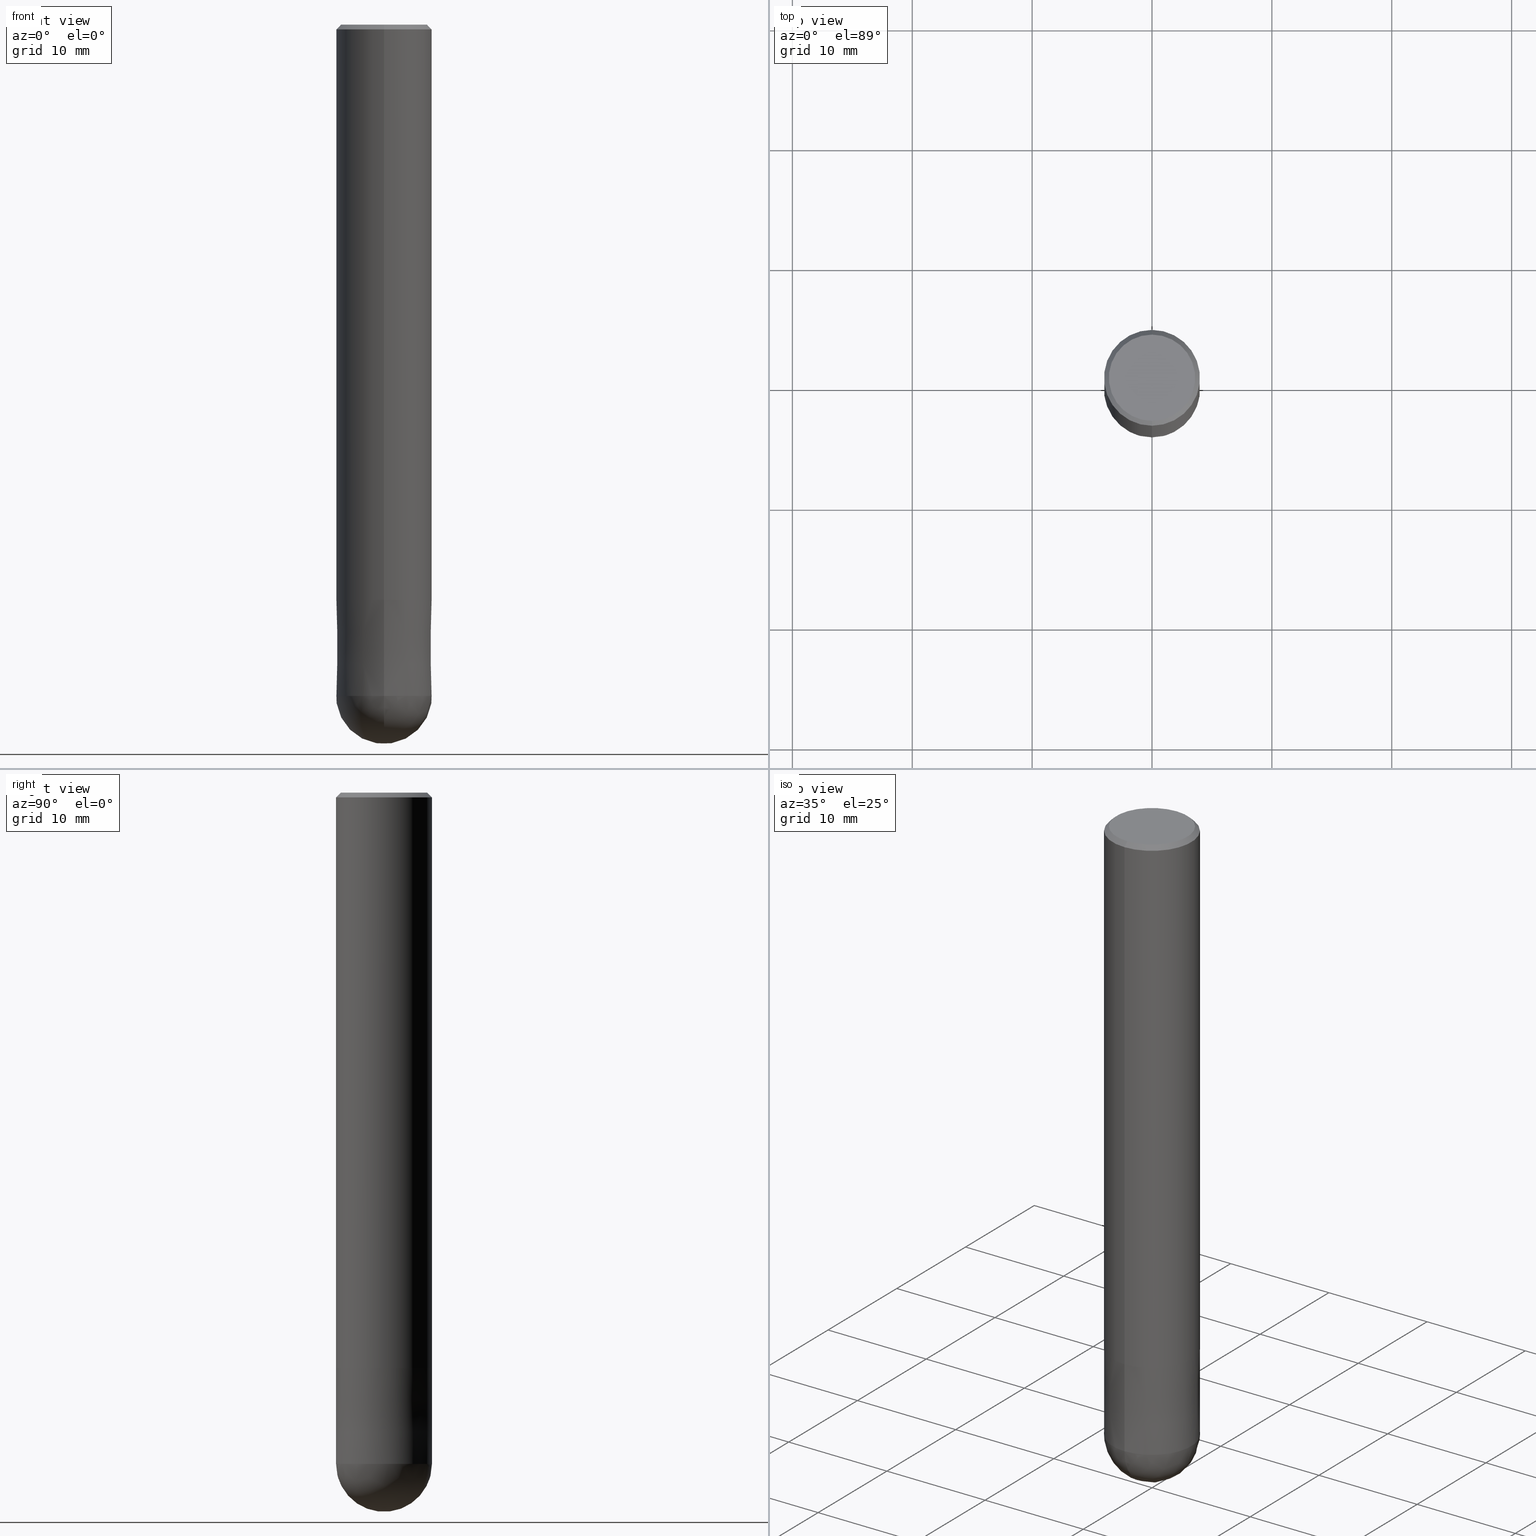
[diagram: canonical four-view strip — front | top / right | iso, engineering-drawing reading convention]
A machine part, canonical four-view strip (front | top / right | iso — engineering-drawing reading convention). The complete STEP part file that produces these views, byte-faithful:
ISO-10303-21;
HEADER;
FILE_DESCRIPTION(('no description'),'unknown implementation level');
FILE_NAME('HFB4080-1200S-Huellk.stp','  ',('CIMSOURCE GmbH'),('CADClick - KiM GmbH - www.kimweb.de'),'unknown preprocess','ACIS','unknown authorization');
FILE_SCHEMA(('automotive_design'));
ENDSEC;
DATA;
#1=MECHANICAL_DESIGN_GEOMETRIC_PRESENTATION_REPRESENTATION(' ',(#10,#11,#12,#13,#14,#15,#16,#17,#18,#19,#20,#21,#22,#23,#24,#25,#26,#27,#28,#29,#30,#31,#32,#33,#34,#35,#36,#37,#38,#39,#40,#41,#42,#43,#44,#45,#46,#47),#6);
#2=PRODUCT_DEFINITION_CONTEXT('',#48,'design');
#3=APPLICATION_PROTOCOL_DEFINITION('INTERNATIONAL STANDARD','automotive_design',1994,#48);
#4=PRODUCT_CATEGORY_RELATIONSHIP('NONE','NONE',#49,#50);
#5=SHAPE_DEFINITION_REPRESENTATION(#51,#52);
#6= (GEOMETRIC_REPRESENTATION_CONTEXT(3)GLOBAL_UNCERTAINTY_ASSIGNED_CONTEXT((#55))GLOBAL_UNIT_ASSIGNED_CONTEXT((#57,#58,#59))REPRESENTATION_CONTEXT('NONE','WORKSPACE'));
#10=STYLED_ITEM('',(#61),#62);
#11=STYLED_ITEM('',(#63),#64);
#12=STYLED_ITEM('',(#65),#66);
#13=STYLED_ITEM('',(#67),#68);
#14=STYLED_ITEM('',(#69),#70);
#15=STYLED_ITEM('',(#71),#72);
#16=STYLED_ITEM('',(#73),#74);
#17=STYLED_ITEM('',(#75),#76);
#18=STYLED_ITEM('',(#77),#78);
#19=STYLED_ITEM('',(#79),#80);
#20=STYLED_ITEM('',(#81),#82);
#21=STYLED_ITEM('',(#83),#84);
#22=STYLED_ITEM('',(#85),#86);
#23=STYLED_ITEM('',(#87),#88);
#24=STYLED_ITEM('',(#89),#90);
#25=STYLED_ITEM('',(#91),#92);
#26=STYLED_ITEM('',(#93),#94);
#27=STYLED_ITEM('',(#95),#96);
#28=STYLED_ITEM('',(#97),#98);
#29=STYLED_ITEM('',(#99),#100);
#30=STYLED_ITEM('',(#101),#102);
#31=STYLED_ITEM('',(#103),#104);
#32=STYLED_ITEM('',(#105),#106);
#33=STYLED_ITEM('',(#107),#108);
#34=STYLED_ITEM('',(#109),#110);
#35=STYLED_ITEM('',(#111),#112);
#36=STYLED_ITEM('',(#113),#114);
#37=STYLED_ITEM('',(#115),#116);
#38=STYLED_ITEM('',(#117),#118);
#39=STYLED_ITEM('',(#119),#120);
#40=STYLED_ITEM('',(#121),#122);
#41=STYLED_ITEM('',(#123),#124);
#42=STYLED_ITEM('',(#125),#126);
#43=STYLED_ITEM('',(#127),#128);
#44=STYLED_ITEM('',(#129),#130);
#45=STYLED_ITEM('',(#131),#132);
#46=STYLED_ITEM('',(#133),#134);
#47=STYLED_ITEM('',(#135),#136);
#48=APPLICATION_CONTEXT(' ');
#49=PRODUCT_CATEGORY('part','NONE');
#50=PRODUCT_RELATED_PRODUCT_CATEGORY('detail',' ',(#137));
#51=PRODUCT_DEFINITION_SHAPE('NONE','NONE',#138);
#52=ADVANCED_BREP_SHAPE_REPRESENTATION('1',(#70,#139),#6);
#55=UNCERTAINTY_MEASURE_WITH_UNIT(LENGTH_MEASURE(1.0E-006),#57,'','');
#57= (CONVERSION_BASED_UNIT('MILLIMETRE',#142)LENGTH_UNIT()NAMED_UNIT(#145));
#58= (NAMED_UNIT(#147)PLANE_ANGLE_UNIT()SI_UNIT($,.RADIAN.));
#59= (NAMED_UNIT(#147)SOLID_ANGLE_UNIT()SI_UNIT($,.STERADIAN.));
#61=PRESENTATION_STYLE_ASSIGNMENT((#153));
#62=ADVANCED_FACE('',(#154),#155,.T.);
#63=PRESENTATION_STYLE_ASSIGNMENT((#156));
#64=EDGE_CURVE('',#90,#136,#157,.T.);
#65=PRESENTATION_STYLE_ASSIGNMENT((#158));
#66=EDGE_CURVE('',#88,#96,#159,.T.);
#67=PRESENTATION_STYLE_ASSIGNMENT((#160));
#68=ADVANCED_FACE('',(#161),#162,.T.);
#69=PRESENTATION_STYLE_ASSIGNMENT((#163));
#70=MANIFOLD_SOLID_BREP('1',#164);
#71=PRESENTATION_STYLE_ASSIGNMENT((#165));
#72=EDGE_CURVE('',#108,#88,#166,.T.);
#73=PRESENTATION_STYLE_ASSIGNMENT((#167));
#74=EDGE_CURVE('',#98,#86,#168,.T.);
#75=PRESENTATION_STYLE_ASSIGNMENT((#169));
#76=ADVANCED_FACE('',(#170),#171,.T.);
#77=PRESENTATION_STYLE_ASSIGNMENT((#172));
#78=EDGE_CURVE('',#108,#98,#173,.T.);
#79=PRESENTATION_STYLE_ASSIGNMENT((#174));
#80=ADVANCED_FACE('',(#175),#176,.T.);
#81=PRESENTATION_STYLE_ASSIGNMENT((#177));
#82=VERTEX_POINT('',#178);
#83=PRESENTATION_STYLE_ASSIGNMENT((#179));
#84=ADVANCED_FACE('',(#180,#181),#182,.T.);
#85=PRESENTATION_STYLE_ASSIGNMENT((#183));
#86=VERTEX_POINT('',#184);
#87=PRESENTATION_STYLE_ASSIGNMENT((#185));
#88=VERTEX_POINT('',#186);
#89=PRESENTATION_STYLE_ASSIGNMENT((#187));
#90=VERTEX_POINT('',#188);
#91=PRESENTATION_STYLE_ASSIGNMENT((#189));
#92=EDGE_CURVE('',#90,#124,#190,.T.);
#93=PRESENTATION_STYLE_ASSIGNMENT((#191));
#94=ADVANCED_FACE('',(#192),#193,.T.);
#95=PRESENTATION_STYLE_ASSIGNMENT((#194));
#96=VERTEX_POINT('',#195);
#97=PRESENTATION_STYLE_ASSIGNMENT((#196));
#98=VERTEX_POINT('',#197);
#99=PRESENTATION_STYLE_ASSIGNMENT((#198));
#100=EDGE_CURVE('',#96,#98,#199,.T.);
#101=PRESENTATION_STYLE_ASSIGNMENT((#200));
#102=EDGE_CURVE('',#124,#120,#201,.T.);
#103=PRESENTATION_STYLE_ASSIGNMENT((#202));
#104=ADVANCED_FACE('',(#203),#204,.T.);
#105=PRESENTATION_STYLE_ASSIGNMENT((#205));
#106=EDGE_CURVE('',#82,#108,#206,.T.);
#107=PRESENTATION_STYLE_ASSIGNMENT((#207));
#108=VERTEX_POINT('',#208);
#109=PRESENTATION_STYLE_ASSIGNMENT((#209));
#110=EDGE_CURVE('',#136,#90,#210,.T.);
#111=PRESENTATION_STYLE_ASSIGNMENT((#211));
#112=EDGE_CURVE('',#120,#136,#212,.T.);
#113=PRESENTATION_STYLE_ASSIGNMENT((#213));
#114=EDGE_CURVE('',#120,#124,#214,.T.);
#115=PRESENTATION_STYLE_ASSIGNMENT((#215));
#116=ADVANCED_FACE('',(#216),#217,.T.);
#117=PRESENTATION_STYLE_ASSIGNMENT((#218));
#118=EDGE_CURVE('',#120,#124,#219,.T.);
#119=PRESENTATION_STYLE_ASSIGNMENT((#220));
#120=VERTEX_POINT('',#221);
#121=PRESENTATION_STYLE_ASSIGNMENT((#222));
#122=EDGE_CURVE('',#96,#88,#223,.T.);
#123=PRESENTATION_STYLE_ASSIGNMENT((#224));
#124=VERTEX_POINT('',#225);
#125=PRESENTATION_STYLE_ASSIGNMENT((#226));
#126=EDGE_CURVE('',#82,#86,#227,.T.);
#127=PRESENTATION_STYLE_ASSIGNMENT((#228));
#128=ADVANCED_FACE('',(#229),#230,.T.);
#129=PRESENTATION_STYLE_ASSIGNMENT((#231));
#130=EDGE_CURVE('',#98,#108,#232,.T.);
#131=PRESENTATION_STYLE_ASSIGNMENT((#233));
#132=EDGE_CURVE('',#86,#82,#234,.T.);
#133=PRESENTATION_STYLE_ASSIGNMENT((#235));
#134=ADVANCED_FACE('',(#236),#237,.T.);
#135=PRESENTATION_STYLE_ASSIGNMENT((#238));
#136=VERTEX_POINT('',#239);
#137=PRODUCT('1','1','PART-1-DESC',(#240));
#138=PRODUCT_DEFINITION('NONE','NONE',#241,#2);
#139=AXIS2_PLACEMENT_3D('',#242,#243,#244);
#142=LENGTH_MEASURE_WITH_UNIT(LENGTH_MEASURE(1.0),#245);
#145=DIMENSIONAL_EXPONENTS(1.0,0.0,0.0,0.0,0.0,0.0,0.0);
#147=DIMENSIONAL_EXPONENTS(0.0,0.0,0.0,0.0,0.0,0.0,0.0);
#153=SURFACE_STYLE_USAGE(.BOTH.,#246);
#154=FACE_OUTER_BOUND('',#247,.T.);
#155=CYLINDRICAL_SURFACE('',#248,4.0);
#156=CURVE_STYLE('',#249,POSITIVE_LENGTH_MEASURE(1.0E-006),#250);
#157=CIRCLE('',#251,3.9999);
#158=CURVE_STYLE('',#252,POSITIVE_LENGTH_MEASURE(1.0E-006),#253);
#159=CIRCLE('',#254,4.0);
#160=SURFACE_STYLE_USAGE(.BOTH.,#255);
#161=FACE_OUTER_BOUND('',#256,.T.);
#162=CONICAL_SURFACE('',#257,3.99995,1.24999999993753E-005);
#163=SURFACE_STYLE_USAGE(.BOTH.,#258);
#164=CLOSED_SHELL('',(#128,#68,#80,#134,#84,#104,#116,#62,#94,#76));
#165=CURVE_STYLE('',#259,POSITIVE_LENGTH_MEASURE(1.0E-006),#260);
#166=LINE('',#261,#262);
#167=CURVE_STYLE('',#263,POSITIVE_LENGTH_MEASURE(1.0E-006),#264);
#168=LINE('',#265,#266);
#169=SURFACE_STYLE_USAGE(.BOTH.,#267);
#170=FACE_OUTER_BOUND('',#268,.T.);
#171=SPHERICAL_SURFACE('',#269,4.00000000000001);
#172=CURVE_STYLE('',#270,POSITIVE_LENGTH_MEASURE(1.0E-006),#271);
#173=CIRCLE('',#272,4.0);
#174=SURFACE_STYLE_USAGE(.BOTH.,#273);
#175=FACE_OUTER_BOUND('',#274,.T.);
#176=CYLINDRICAL_SURFACE('',#275,4.0);
#177=POINT_STYLE(' ',#276,POSITIVE_LENGTH_MEASURE(1.0E-006),#277);
#178=CARTESIAN_POINT('',(0.0,3.6,0.0));
#179=SURFACE_STYLE_USAGE(.BOTH.,#278);
#180=FACE_OUTER_BOUND('',#279,.T.);
#181=FACE_BOUND('',#280,.T.);
#182=PLANE('',#281);
#183=POINT_STYLE(' ',#282,POSITIVE_LENGTH_MEASURE(1.0E-006),#283);
#184=CARTESIAN_POINT('',(4.40858287376056E-016,-3.6,0.0));
#185=POINT_STYLE(' ',#284,POSITIVE_LENGTH_MEASURE(1.0E-006),#285);
#186=CARTESIAN_POINT('',(0.0,4.0,-48.0));
#187=POINT_STYLE(' ',#286,POSITIVE_LENGTH_MEASURE(1.0E-006),#287);
#188=CARTESIAN_POINT('',(0.0,3.9999,-48.0));
#189=CURVE_STYLE('',#288,POSITIVE_LENGTH_MEASURE(1.0E-006),#289);
#190=LINE('',#290,#291);
#191=SURFACE_STYLE_USAGE(.BOTH.,#292);
#192=FACE_OUTER_BOUND('',#293,.T.);
#193=CONICAL_SURFACE('',#294,3.99995,1.24999999993753E-005);
#194=POINT_STYLE(' ',#295,POSITIVE_LENGTH_MEASURE(1.0E-006),#296);
#195=CARTESIAN_POINT('',(4.89842541528951E-016,-4.0,-48.0));
#196=POINT_STYLE(' ',#297,POSITIVE_LENGTH_MEASURE(1.0E-006),#298);
#197=CARTESIAN_POINT('',(4.89842541528951E-016,-4.0,-0.399999999999999));
#198=CURVE_STYLE('',#299,POSITIVE_LENGTH_MEASURE(1.0E-006),#300);
#199=LINE('',#301,#302);
#200=CURVE_STYLE('',#303,POSITIVE_LENGTH_MEASURE(1.0E-006),#304);
#201=CIRCLE('',#305,4.0);
#202=SURFACE_STYLE_USAGE(.BOTH.,#306);
#203=FACE_OUTER_BOUND('',#307,.T.);
#204=PLANE('',#308);
#205=CURVE_STYLE('',#309,POSITIVE_LENGTH_MEASURE(1.0E-006),#310);
#206=LINE('',#311,#312);
#207=POINT_STYLE(' ',#313,POSITIVE_LENGTH_MEASURE(1.0E-006),#314);
#208=CARTESIAN_POINT('',(0.0,4.0,-0.399999999999999));
#209=CURVE_STYLE('',#315,POSITIVE_LENGTH_MEASURE(1.0E-006),#316);
#210=CIRCLE('',#317,3.9999);
#211=CURVE_STYLE('',#318,POSITIVE_LENGTH_MEASURE(1.0E-006),#319);
#212=LINE('',#320,#321);
#213=CURVE_STYLE('',#322,POSITIVE_LENGTH_MEASURE(1.0E-006),#323);
#214=CIRCLE('',#324,4.00000000000001);
#215=SURFACE_STYLE_USAGE(.BOTH.,#325);
#216=FACE_OUTER_BOUND('',#326,.T.);
#217=CONICAL_SURFACE('',#327,3.8,0.78539816339745);
#218=CURVE_STYLE('',#328,POSITIVE_LENGTH_MEASURE(1.0E-006),#329);
#219=CIRCLE('',#330,4.0);
#220=POINT_STYLE(' ',#331,POSITIVE_LENGTH_MEASURE(1.0E-006),#332);
#221=CARTESIAN_POINT('',(4.89842541528951E-016,-4.0,-56.0));
#222=CURVE_STYLE('',#333,POSITIVE_LENGTH_MEASURE(1.0E-006),#334);
#223=CIRCLE('',#335,4.0);
#224=POINT_STYLE(' ',#336,POSITIVE_LENGTH_MEASURE(1.0E-006),#337);
#225=CARTESIAN_POINT('',(0.0,4.0,-56.0));
#226=CURVE_STYLE('',#338,POSITIVE_LENGTH_MEASURE(1.0E-006),#339);
#227=CIRCLE('',#340,3.6);
#228=SURFACE_STYLE_USAGE(.BOTH.,#341);
#229=FACE_OUTER_BOUND('',#342,.T.);
#230=SPHERICAL_SURFACE('',#343,4.00000000000001);
#231=CURVE_STYLE('',#344,POSITIVE_LENGTH_MEASURE(1.0E-006),#345);
#232=CIRCLE('',#346,4.0);
#233=CURVE_STYLE('',#347,POSITIVE_LENGTH_MEASURE(1.0E-006),#348);
#234=CIRCLE('',#349,3.6);
#235=SURFACE_STYLE_USAGE(.BOTH.,#350);
#236=FACE_OUTER_BOUND('',#351,.T.);
#237=CONICAL_SURFACE('',#352,3.8,0.78539816339745);
#238=POINT_STYLE(' ',#353,POSITIVE_LENGTH_MEASURE(1.0E-006),#354);
#239=CARTESIAN_POINT('',(4.89830295465413E-016,-3.9999,-48.0));
#240=PRODUCT_CONTEXT('',#48,'mechanical');
#241=PRODUCT_DEFINITION_FORMATION_WITH_SPECIFIED_SOURCE(' ','NONE',#137,.NOT_KNOWN.);
#242=CARTESIAN_POINT('',(0.0,0.0,0.0));
#243=DIRECTION('',(0.0,0.0,1.0));
#244=DIRECTION('',(1.0,0.0,0.0));
#245= (NAMED_UNIT(#145)LENGTH_UNIT()SI_UNIT(.MILLI.,.METRE.));
#246=SURFACE_SIDE_STYLE('',(#356));
#247=EDGE_LOOP('',(#357,#358,#359,#360));
#248=AXIS2_PLACEMENT_3D('',#361,#362,#363);
#249=DRAUGHTING_PRE_DEFINED_CURVE_FONT('continuous');
#250=COLOUR_RGB('',0.800000011920929,0.800000011920929,0.800000011920929);
#251=AXIS2_PLACEMENT_3D('',#364,#365,#366);
#252=DRAUGHTING_PRE_DEFINED_CURVE_FONT('continuous');
#253=COLOUR_RGB('',0.498039215803146,0.498039215803146,0.498039215803146);
#254=AXIS2_PLACEMENT_3D('',#367,#368,#369);
#255=SURFACE_SIDE_STYLE('',(#370));
#256=EDGE_LOOP('',(#371,#372,#373,#374));
#257=AXIS2_PLACEMENT_3D('',#375,#376,#377);
#258=SURFACE_SIDE_STYLE('',(#378));
#259=DRAUGHTING_PRE_DEFINED_CURVE_FONT('continuous');
#260=COLOUR_RGB('',0.498039215803146,0.498039215803146,0.498039215803146);
#261=CARTESIAN_POINT('',(-4.89842541528951E-016,4.0,-24.2));
#262=VECTOR('',#379,1.0);
#263=DRAUGHTING_PRE_DEFINED_CURVE_FONT('continuous');
#264=COLOUR_RGB('',0.498039215803146,0.498039215803146,0.498039215803146);
#265=CARTESIAN_POINT('',(4.65350414452503E-016,-3.8,-0.200000000000003));
#266=VECTOR('',#380,1.0);
#267=SURFACE_SIDE_STYLE('',(#381));
#268=EDGE_LOOP('',(#382,#383));
#269=AXIS2_PLACEMENT_3D('',#384,#385,#386);
#270=DRAUGHTING_PRE_DEFINED_CURVE_FONT('continuous');
#271=COLOUR_RGB('',0.498039215803146,0.498039215803146,0.498039215803146);
#272=AXIS2_PLACEMENT_3D('',#387,#388,#389);
#273=SURFACE_SIDE_STYLE('',(#390));
#274=EDGE_LOOP('',(#391,#392,#393,#394));
#275=AXIS2_PLACEMENT_3D('',#395,#396,#397);
#276=PRE_DEFINED_MARKER('');
#277=COLOUR_RGB('',0.498039215803146,0.498039215803146,0.498039215803146);
#278=SURFACE_SIDE_STYLE('',(#398));
#279=EDGE_LOOP('',(#399,#400));
#280=EDGE_LOOP('',(#401,#402));
#281=AXIS2_PLACEMENT_3D('',#403,#404,#405);
#282=PRE_DEFINED_MARKER('');
#283=COLOUR_RGB('',0.498039215803146,0.498039215803146,0.498039215803146);
#284=PRE_DEFINED_MARKER('');
#285=COLOUR_RGB('',0.498039215803146,0.498039215803146,0.498039215803146);
#286=PRE_DEFINED_MARKER('');
#287=COLOUR_RGB('',0.800000011920929,0.800000011920929,0.800000011920929);
#288=DRAUGHTING_PRE_DEFINED_CURVE_FONT('continuous');
#289=COLOUR_RGB('',0.800000011920929,0.800000011920929,0.800000011920929);
#290=CARTESIAN_POINT('',(-4.89836418497182E-016,3.99995,-52.0));
#291=VECTOR('',#406,1.0);
#292=SURFACE_SIDE_STYLE('',(#407));
#293=EDGE_LOOP('',(#408,#409,#410,#411));
#294=AXIS2_PLACEMENT_3D('',#412,#413,#414);
#295=PRE_DEFINED_MARKER('');
#296=COLOUR_RGB('',0.498039215803146,0.498039215803146,0.498039215803146);
#297=PRE_DEFINED_MARKER('');
#298=COLOUR_RGB('',0.498039215803146,0.498039215803146,0.498039215803146);
#299=DRAUGHTING_PRE_DEFINED_CURVE_FONT('continuous');
#300=COLOUR_RGB('',0.498039215803146,0.498039215803146,0.498039215803146);
#301=CARTESIAN_POINT('',(4.89842541528951E-016,-4.0,-24.2));
#302=VECTOR('',#415,1.0);
#303=DRAUGHTING_PRE_DEFINED_CURVE_FONT('continuous');
#304=COLOUR_RGB('',0.800000011920929,0.800000011920929,0.800000011920929);
#305=AXIS2_PLACEMENT_3D('',#416,#417,#418);
#306=SURFACE_SIDE_STYLE('',(#419));
#307=EDGE_LOOP('',(#420,#421));
#308=AXIS2_PLACEMENT_3D('',#422,#423,#424);
#309=DRAUGHTING_PRE_DEFINED_CURVE_FONT('continuous');
#310=COLOUR_RGB('',0.498039215803146,0.498039215803146,0.498039215803146);
#311=CARTESIAN_POINT('',(-4.65350414452503E-016,3.8,-0.200000000000003));
#312=VECTOR('',#425,1.0);
#313=PRE_DEFINED_MARKER('');
#314=COLOUR_RGB('',0.498039215803146,0.498039215803146,0.498039215803146);
#315=DRAUGHTING_PRE_DEFINED_CURVE_FONT('continuous');
#316=COLOUR_RGB('',0.800000011920929,0.800000011920929,0.800000011920929);
#317=AXIS2_PLACEMENT_3D('',#426,#427,#428);
#318=DRAUGHTING_PRE_DEFINED_CURVE_FONT('continuous');
#319=COLOUR_RGB('',0.800000011920929,0.800000011920929,0.800000011920929);
#320=CARTESIAN_POINT('',(4.89836418497182E-016,-3.99995,-52.0));
#321=VECTOR('',#429,1.0);
#322=DRAUGHTING_PRE_DEFINED_CURVE_FONT('continuous');
#323=COLOUR_RGB('',0.800000011920929,0.800000011920929,0.800000011920929);
#324=AXIS2_PLACEMENT_3D('',#430,#431,#432);
#325=SURFACE_SIDE_STYLE('',(#433));
#326=EDGE_LOOP('',(#434,#435,#436,#437));
#327=AXIS2_PLACEMENT_3D('',#438,#439,#440);
#328=DRAUGHTING_PRE_DEFINED_CURVE_FONT('continuous');
#329=COLOUR_RGB('',0.800000011920929,0.800000011920929,0.800000011920929);
#330=AXIS2_PLACEMENT_3D('',#441,#442,#443);
#331=PRE_DEFINED_MARKER('');
#332=COLOUR_RGB('',0.800000011920929,0.800000011920929,0.800000011920929);
#333=DRAUGHTING_PRE_DEFINED_CURVE_FONT('continuous');
#334=COLOUR_RGB('',0.498039215803146,0.498039215803146,0.498039215803146);
#335=AXIS2_PLACEMENT_3D('',#444,#445,#446);
#336=PRE_DEFINED_MARKER('');
#337=COLOUR_RGB('',0.800000011920929,0.800000011920929,0.800000011920929);
#338=DRAUGHTING_PRE_DEFINED_CURVE_FONT('continuous');
#339=COLOUR_RGB('',0.498039215803146,0.498039215803146,0.498039215803146);
#340=AXIS2_PLACEMENT_3D('',#447,#448,#449);
#341=SURFACE_SIDE_STYLE('',(#450));
#342=EDGE_LOOP('',(#451,#452));
#343=AXIS2_PLACEMENT_3D('',#453,#454,#455);
#344=DRAUGHTING_PRE_DEFINED_CURVE_FONT('continuous');
#345=COLOUR_RGB('',0.498039215803146,0.498039215803146,0.498039215803146);
#346=AXIS2_PLACEMENT_3D('',#456,#457,#458);
#347=DRAUGHTING_PRE_DEFINED_CURVE_FONT('continuous');
#348=COLOUR_RGB('',0.498039215803146,0.498039215803146,0.498039215803146);
#349=AXIS2_PLACEMENT_3D('',#459,#460,#461);
#350=SURFACE_SIDE_STYLE('',(#462));
#351=EDGE_LOOP('',(#463,#464,#465,#466));
#352=AXIS2_PLACEMENT_3D('',#467,#468,#469);
#353=PRE_DEFINED_MARKER('');
#354=COLOUR_RGB('',0.800000011920929,0.800000011920929,0.800000011920929);
#356=SURFACE_STYLE_FILL_AREA(#470);
#357=ORIENTED_EDGE('',*,*,#72,.T.);
#358=ORIENTED_EDGE('',*,*,#122,.F.);
#359=ORIENTED_EDGE('',*,*,#100,.T.);
#360=ORIENTED_EDGE('',*,*,#130,.T.);
#361=CARTESIAN_POINT('',(0.0,0.0,-24.2));
#362=DIRECTION('',(-0.0,-0.0,1.0));
#363=DIRECTION('',(0.0,1.0,0.0));
#364=CARTESIAN_POINT('',(0.0,0.0,-48.0));
#365=DIRECTION('',(0.0,0.0,-1.0));
#366=DIRECTION('',(0.0,1.0,0.0));
#367=CARTESIAN_POINT('',(0.0,0.0,-48.0));
#368=DIRECTION('',(0.0,0.0,-1.0));
#369=DIRECTION('',(0.0,1.0,0.0));
#370=SURFACE_STYLE_FILL_AREA(#471);
#371=ORIENTED_EDGE('',*,*,#92,.F.);
#372=ORIENTED_EDGE('',*,*,#64,.T.);
#373=ORIENTED_EDGE('',*,*,#112,.F.);
#374=ORIENTED_EDGE('',*,*,#102,.F.);
#375=CARTESIAN_POINT('',(0.0,0.0,-52.0));
#376=DIRECTION('',(0.0,-0.0,-1.0));
#377=DIRECTION('',(0.0,1.0,0.0));
#378=SURFACE_STYLE_FILL_AREA(#472);
#379=DIRECTION('',(0.0,0.0,-1.0));
#380=DIRECTION('',(-8.65927457071937E-017,0.707106781186549,0.707106781186546));
#381=SURFACE_STYLE_FILL_AREA(#473);
#382=ORIENTED_EDGE('',*,*,#114,.T.);
#383=ORIENTED_EDGE('',*,*,#102,.T.);
#384=CARTESIAN_POINT('',(0.0,0.0,-56.0));
#385=DIRECTION('',(0.0,1.0,0.0));
#386=DIRECTION('',(0.0,0.0,-1.0));
#387=CARTESIAN_POINT('',(0.0,0.0,-0.399999999999999));
#388=DIRECTION('',(0.0,0.0,-1.0));
#389=DIRECTION('',(0.0,1.0,0.0));
#390=SURFACE_STYLE_FILL_AREA(#474);
#391=ORIENTED_EDGE('',*,*,#72,.F.);
#392=ORIENTED_EDGE('',*,*,#78,.T.);
#393=ORIENTED_EDGE('',*,*,#100,.F.);
#394=ORIENTED_EDGE('',*,*,#66,.F.);
#395=CARTESIAN_POINT('',(0.0,0.0,-24.2));
#396=DIRECTION('',(-0.0,-0.0,1.0));
#397=DIRECTION('',(0.0,1.0,0.0));
#398=SURFACE_STYLE_FILL_AREA(#475);
#399=ORIENTED_EDGE('',*,*,#66,.T.);
#400=ORIENTED_EDGE('',*,*,#122,.T.);
#401=ORIENTED_EDGE('',*,*,#64,.F.);
#402=ORIENTED_EDGE('',*,*,#110,.F.);
#403=CARTESIAN_POINT('',(0.0,2.0,-48.0));
#404=DIRECTION('',(0.0,0.0,-1.0));
#405=DIRECTION('',(0.0,1.0,0.0));
#406=DIRECTION('',(-1.53075794216161E-021,1.24999999990498E-005,-0.999999999921875));
#407=SURFACE_STYLE_FILL_AREA(#476);
#408=ORIENTED_EDGE('',*,*,#92,.T.);
#409=ORIENTED_EDGE('',*,*,#118,.F.);
#410=ORIENTED_EDGE('',*,*,#112,.T.);
#411=ORIENTED_EDGE('',*,*,#110,.T.);
#412=CARTESIAN_POINT('',(0.0,0.0,-52.0));
#413=DIRECTION('',(0.0,-0.0,-1.0));
#414=DIRECTION('',(0.0,1.0,0.0));
#415=DIRECTION('',(-0.0,-0.0,1.0));
#416=CARTESIAN_POINT('',(0.0,0.0,-56.0));
#417=DIRECTION('',(0.0,0.0,-1.0));
#418=DIRECTION('',(0.0,1.0,0.0));
#419=SURFACE_STYLE_FILL_AREA(#477);
#420=ORIENTED_EDGE('',*,*,#126,.F.);
#421=ORIENTED_EDGE('',*,*,#132,.F.);
#422=CARTESIAN_POINT('',(0.0,1.8,0.0));
#423=DIRECTION('',(-0.0,0.0,1.0));
#424=DIRECTION('',(0.0,-1.0,0.0));
#425=DIRECTION('',(-8.65927457071937E-017,0.707106781186549,-0.707106781186546));
#426=CARTESIAN_POINT('',(0.0,0.0,-48.0));
#427=DIRECTION('',(0.0,0.0,-1.0));
#428=DIRECTION('',(0.0,1.0,0.0));
#429=DIRECTION('',(-1.53075794216161E-021,1.24999999990498E-005,0.999999999921875));
#430=CARTESIAN_POINT('',(0.0,0.0,-56.0));
#431=DIRECTION('',(1.0,0.0,1.22460635382238E-016));
#432=DIRECTION('',(-1.22460635382238E-016,0.0,1.0));
#433=SURFACE_STYLE_FILL_AREA(#478);
#434=ORIENTED_EDGE('',*,*,#106,.T.);
#435=ORIENTED_EDGE('',*,*,#130,.F.);
#436=ORIENTED_EDGE('',*,*,#74,.T.);
#437=ORIENTED_EDGE('',*,*,#132,.T.);
#438=CARTESIAN_POINT('',(0.0,0.0,-0.200000000000003));
#439=DIRECTION('',(0.0,-0.0,-1.0));
#440=DIRECTION('',(0.0,1.0,0.0));
#441=CARTESIAN_POINT('',(0.0,0.0,-56.0));
#442=DIRECTION('',(0.0,0.0,-1.0));
#443=DIRECTION('',(0.0,1.0,0.0));
#444=CARTESIAN_POINT('',(0.0,0.0,-48.0));
#445=DIRECTION('',(0.0,0.0,-1.0));
#446=DIRECTION('',(0.0,1.0,0.0));
#447=CARTESIAN_POINT('',(0.0,0.0,0.0));
#448=DIRECTION('',(0.0,0.0,-1.0));
#449=DIRECTION('',(0.0,1.0,0.0));
#450=SURFACE_STYLE_FILL_AREA(#479);
#451=ORIENTED_EDGE('',*,*,#114,.F.);
#452=ORIENTED_EDGE('',*,*,#118,.T.);
#453=CARTESIAN_POINT('',(0.0,0.0,-56.0));
#454=DIRECTION('',(0.0,1.0,0.0));
#455=DIRECTION('',(0.0,0.0,-1.0));
#456=CARTESIAN_POINT('',(0.0,0.0,-0.399999999999999));
#457=DIRECTION('',(0.0,0.0,-1.0));
#458=DIRECTION('',(0.0,1.0,0.0));
#459=CARTESIAN_POINT('',(0.0,0.0,0.0));
#460=DIRECTION('',(0.0,0.0,-1.0));
#461=DIRECTION('',(0.0,1.0,0.0));
#462=SURFACE_STYLE_FILL_AREA(#480);
#463=ORIENTED_EDGE('',*,*,#106,.F.);
#464=ORIENTED_EDGE('',*,*,#126,.T.);
#465=ORIENTED_EDGE('',*,*,#74,.F.);
#466=ORIENTED_EDGE('',*,*,#78,.F.);
#467=CARTESIAN_POINT('',(0.0,0.0,-0.200000000000003));
#468=DIRECTION('',(0.0,-0.0,-1.0));
#469=DIRECTION('',(0.0,1.0,0.0));
#470=FILL_AREA_STYLE('',(#481));
#471=FILL_AREA_STYLE('',(#482));
#472=FILL_AREA_STYLE('',(#483));
#473=FILL_AREA_STYLE('',(#484));
#474=FILL_AREA_STYLE('',(#485));
#475=FILL_AREA_STYLE('',(#486));
#476=FILL_AREA_STYLE('',(#487));
#477=FILL_AREA_STYLE('',(#488));
#478=FILL_AREA_STYLE('',(#489));
#479=FILL_AREA_STYLE('',(#490));
#480=FILL_AREA_STYLE('',(#491));
#481=FILL_AREA_STYLE_COLOUR('',#492);
#482=FILL_AREA_STYLE_COLOUR('',#493);
#483=FILL_AREA_STYLE_COLOUR('',#494);
#484=FILL_AREA_STYLE_COLOUR('',#495);
#485=FILL_AREA_STYLE_COLOUR('',#496);
#486=FILL_AREA_STYLE_COLOUR('',#497);
#487=FILL_AREA_STYLE_COLOUR('',#498);
#488=FILL_AREA_STYLE_COLOUR('',#499);
#489=FILL_AREA_STYLE_COLOUR('',#500);
#490=FILL_AREA_STYLE_COLOUR('',#501);
#491=FILL_AREA_STYLE_COLOUR('',#502);
#492=COLOUR_RGB('',0.498039215803146,0.498039215803146,0.498039215803146);
#493=COLOUR_RGB('',0.800000011920929,0.800000011920929,0.800000011920929);
#494=COLOUR_RGB('',0.800000011920929,0.800000011920929,0.800000011920929);
#495=COLOUR_RGB('',0.800000011920929,0.800000011920929,0.800000011920929);
#496=COLOUR_RGB('',0.498039215803146,0.498039215803146,0.498039215803146);
#497=COLOUR_RGB('',0.498039215803146,0.498039215803146,0.498039215803146);
#498=COLOUR_RGB('',0.800000011920929,0.800000011920929,0.800000011920929);
#499=COLOUR_RGB('',0.498039215803146,0.498039215803146,0.498039215803146);
#500=COLOUR_RGB('',0.498039215803146,0.498039215803146,0.498039215803146);
#501=COLOUR_RGB('',0.800000011920929,0.800000011920929,0.800000011920929);
#502=COLOUR_RGB('',0.498039215803146,0.498039215803146,0.498039215803146);
#503=AXIS2_PLACEMENT_3D('PCS',#504,#505,#506);
#504=CARTESIAN_POINT('',(0.0,0.0,0.0));
#505=DIRECTION('',(0.0,0.0,1.0));
#506=DIRECTION('',(1.0,0.0,0.0));
#507=AXIS2_PLACEMENT_3D('CIP',#508,#509,#510);
#508=CARTESIAN_POINT('',(0.0,0.0,-60.0));
#509=DIRECTION('',(0.0,0.0,1.0));
#510=DIRECTION('',(1.0,0.0,0.0));
#511=AXIS2_PLACEMENT_3D('CRP',#512,#513,#514);
#512=CARTESIAN_POINT('',(-4.0,0.0,-60.0));
#513=DIRECTION('',(0.0,0.0,1.0));
#514=DIRECTION('',(1.0,0.0,0.0));
#515=AXIS2_PLACEMENT_3D('MCS',#516,#517,#518);
#516=CARTESIAN_POINT('',(0.0,0.0,-48.0));
#517=DIRECTION('',(0.0,0.0,1.0));
#518=DIRECTION('',(1.0,0.0,0.0));
#519=CONSTRUCTIVE_GEOMETRY_REPRESENTATION_RELATIONSHIP('coordinate systems',$,#52,#520);
#520=CONSTRUCTIVE_GEOMETRY_REPRESENTATION('coordinate systems',(#503,#507,#511,#515),#6);
ENDSEC;
END-ISO-10303-21;
